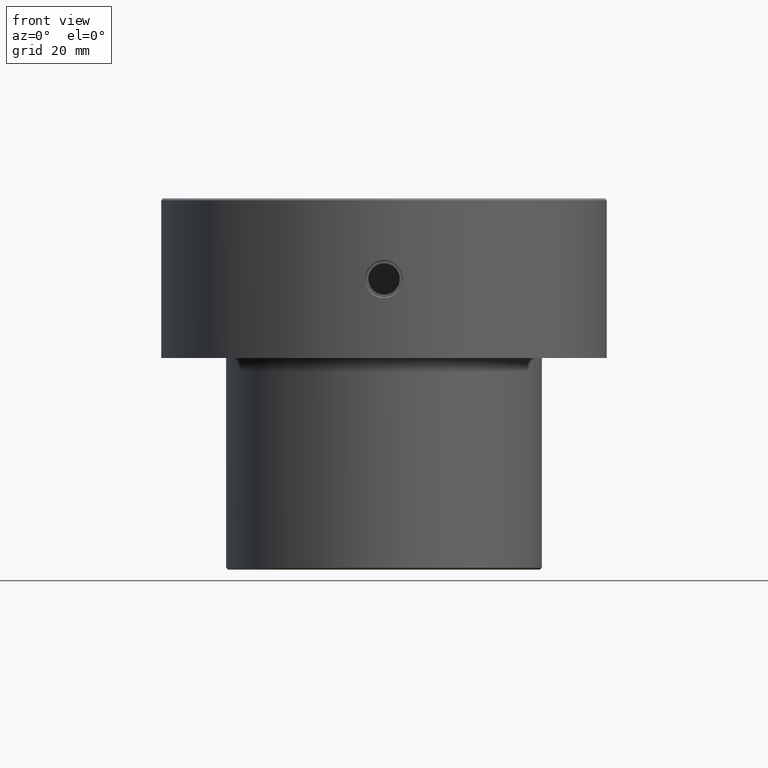
[diagram: clean part render]
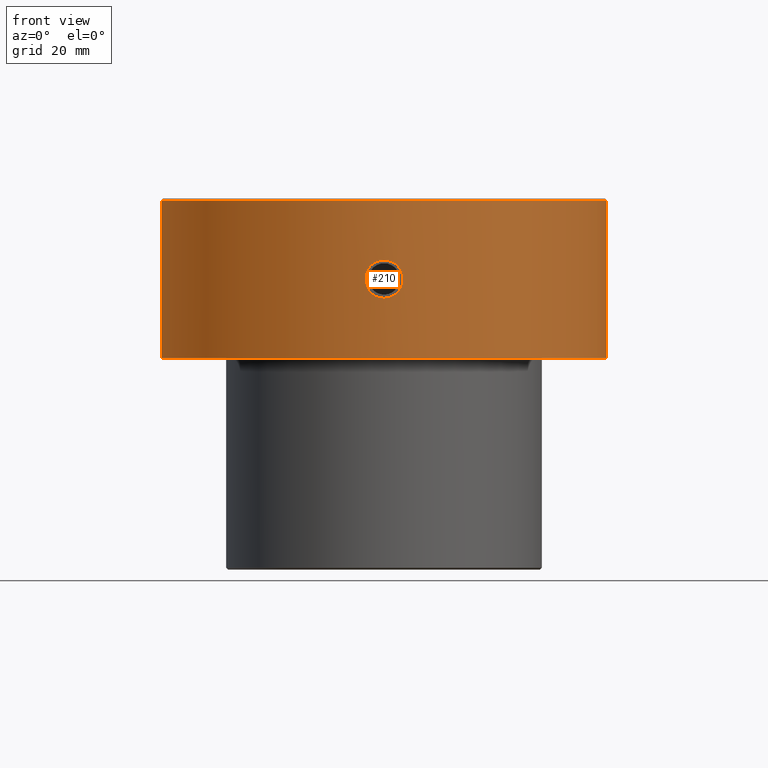
[diagram: same view with one face highlighted and labeled with its STEP entity id]
A machine part, front view. The second image highlights one B-rep face of the part: STEP entity #210.
In plain terms, the highlighted cylindrical surface (partial cylindrical patch) has radius 60 mm, axis along (-0, -0, 1).
Its self-contained STEP definition (entity closure, byte-faithful):
#15 = DIRECTION ( 'NONE',  ( 1.000000000000000000, 0.000000000000000000, 0.000000000000000000 ) ) ;
#19 = CARTESIAN_POINT ( 'NONE',  ( 0.000000000000000000, 0.000000000000000000, -43.00000000000000000 ) ) ;
#27 = CARTESIAN_POINT ( 'NONE',  ( 5.136837413041311251, -59.77970308888831852, -22.08816684699451116 ) ) ;
#32 = CARTESIAN_POINT ( 'NONE',  ( 1.331677132868700042, -59.98543682719939341, -16.77960578962645855 ) ) ;
#40 = CARTESIAN_POINT ( 'NONE',  ( 3.395129289966630992, -59.90433662620570487, -25.62434621544872471 ) ) ;
#80 = CARTESIAN_POINT ( 'NONE',  ( -3.392890526894669634, -59.90447156056805511, -25.62656009414359559 ) ) ;
#86 = CARTESIAN_POINT ( 'NONE',  ( -4.971619445419676708, -59.79370664058078688, -20.41326887254816924 ) ) ;
#114 = CARTESIAN_POINT ( 'NONE',  ( -60.00000000000000000, 7.347880794884118356E-15, -43.00000000000000000 ) ) ;
#118 = CARTESIAN_POINT ( 'NONE',  ( 3.868814782328906965, -59.87560883568547609, -18.34992625906702557 ) ) ;
#126 = FACE_BOUND ( 'NONE', #877, .T. ) ;
#127 = VERTEX_POINT ( 'NONE', #921 ) ;
#129 = ORIENTED_EDGE ( 'NONE', *, *, #819, .T. ) ;
#130 = EDGE_CURVE ( 'NONE', #935, #553, #663, .T. ) ;
#134 = CARTESIAN_POINT ( 'NONE',  ( 4.458730702085411224, -59.83439413144561314, -19.17392351310978782 ) ) ;
#173 = CARTESIAN_POINT ( 'NONE',  ( -1.334972523834260905, -59.98605396347375063, -26.72804907324348633 ) ) ;
#177 = EDGE_CURVE ( 'NONE', #553, #935, #277, .T. ) ;
#188 = CARTESIAN_POINT ( 'NONE',  ( 0.3353192516437006887, -60.00000000000000000, -26.89337299999998265 ) ) ;
#196 = CARTESIAN_POINT ( 'NONE',  ( 0.6692586062491494570, -59.99718901059083720, -26.86081802806996777 ) ) ;
#198 = EDGE_CURVE ( 'NONE', #1077, #127, #1076, .T. ) ;
#205 = CARTESIAN_POINT ( 'NONE',  ( -4.617430343385497515, -59.82220291653938915, -19.47140312544978968 ) ) ;
#210 = ADVANCED_FACE ( 'NONE', ( #701, #126 ), #327, .T. ) ;
#211 = CARTESIAN_POINT ( 'NONE',  ( 4.616423482476442963, -59.82228182878878897, -24.03082886295979392 ) ) ;
#231 = CARTESIAN_POINT ( 'NONE',  ( 4.616407551139440457, -59.82228229204994108, -19.46929791481670691 ) ) ;
#237 = CARTESIAN_POINT ( 'NONE',  ( 4.458574052464452819, -59.83440426827348091, -24.32624052953638127 ) ) ;
#250 = ORIENTED_EDGE ( 'NONE', *, *, #177, .F. ) ;
#260 = CARTESIAN_POINT ( 'NONE',  ( -0.6762753146267388438, -59.99709174962247715, -16.64033222007250501 ) ) ;
#261 = CARTESIAN_POINT ( 'NONE',  ( -60.00000000000000000, 7.347880794884118356E-15, -0.4999999999999796274 ) ) ;
#263 = CIRCLE ( 'NONE', #1115, 60.00000000000000000 ) ;
#277 = B_SPLINE_CURVE_WITH_KNOTS ( 'NONE', 3,
 ( #1052, #188, #196, #575, #1159, #295, #774, #299, #681, #1187, #40, #1071, #1074, #237, #211, #415, #426, #1172, #697, #614, #27, #784, #599, #421, #711, #231, #134, #594, #118, #507, #985, #993, #880, #800, #309, #32, #789, #1001, #408, #526 ),
 .UNSPECIFIED., .F., .F.,
 ( 4, 2, 2, 2, 2, 2, 2, 2, 2, 2, 2, 2, 2, 2, 2, 2, 2, 2, 2, 4 ),
 ( 0.004095405123159071362, 0.005100500369167903711, 0.006105595615176736927, 0.006608143238181152235, 0.007110690861185567542, 0.008115786107194404228, 0.009120881353203240047, 0.01012597659921207760, 0.01062852422221649551, 0.01113107184522091342, 0.01213616709122974924, 0.01314126233723858506, 0.01414635758324742087, 0.01515145282925625669, 0.01615654807526509251, 0.01716164332127392833, 0.01816673856728276415, 0.01866928619028718206, 0.01917183381329159997, 0.02017692905930043579 ),
 .UNSPECIFIED. ) ;
#280 = CARTESIAN_POINT ( 'NONE',  ( 6.298815348907991794E-16, -60.00000000000000000, -16.60662699999998893 ) ) ;
#295 = CARTESIAN_POINT ( 'NONE',  ( 2.121181652099979331, -59.96269291385860356, -26.43736937772831652 ) ) ;
#299 = CARTESIAN_POINT ( 'NONE',  ( 2.569956903251245262, -59.94512013784831339, -26.20657932728730799 ) ) ;
#304 = CARTESIAN_POINT ( 'NONE',  ( -4.875208218984297126, -59.80174531478552780, -23.40457298796985341 ) ) ;
#309 = CARTESIAN_POINT ( 'NONE',  ( 1.654038690124470579, -59.97741367671423518, -16.87764248545315127 ) ) ;
#315 = DIRECTION ( 'NONE',  ( -0.000000000000000000, -0.000000000000000000, 1.000000000000000000 ) ) ;
#324 = DIRECTION ( 'NONE',  ( 0.000000000000000000, 0.000000000000000000, -1.000000000000000000 ) ) ;
#327 = CYLINDRICAL_SURFACE ( 'NONE', #793, 60.00000000000000000 ) ;
#352 = ORIENTED_EDGE ( 'NONE', *, *, #130, .F. ) ;
#383 = CARTESIAN_POINT ( 'NONE',  ( -2.122225307868850663, -59.96265876630112501, -17.06306252860049355 ) ) ;
#404 = CARTESIAN_POINT ( 'NONE',  ( -5.136891892529879655, -59.77969840755128672, -22.08337126903461467 ) ) ;
#408 = CARTESIAN_POINT ( 'NONE',  ( 0.3357746474088908473, -60.00000000000000711, -16.60662699999999248 ) ) ;
#415 = CARTESIAN_POINT ( 'NONE',  ( 4.810057586331644153, -59.80691881596411719, -23.56292269278795715 ) ) ;
#421 = CARTESIAN_POINT ( 'NONE',  ( 4.972930236384428326, -59.79359712298764151, -20.41841324377885414 ) ) ;
#426 = CARTESIAN_POINT ( 'NONE',  ( 4.867400257086890392, -59.80226426731227463, -23.40234003167120846 ) ) ;
#433 = DIRECTION ( 'NONE',  ( -0.000000000000000000, -0.000000000000000000, 1.000000000000000000 ) ) ;
#443 = DIRECTION ( 'NONE',  ( -0.000000000000000000, -0.000000000000000000, 1.000000000000000000 ) ) ;
#459 = LINE ( 'NONE', #625, #951 ) ;
#471 = CARTESIAN_POINT ( 'NONE',  ( -4.619902854489991384, -59.82201012577228738, -24.02332339787123772 ) ) ;
#482 = CARTESIAN_POINT ( 'NONE',  ( -0.6753022773418994040, -59.99710650175052251, -26.85984295772100694 ) ) ;
#497 = CARTESIAN_POINT ( 'NONE',  ( -1.655170096564954285, -59.97797077412162992, -26.63067294738002388 ) ) ;
#506 = CARTESIAN_POINT ( 'NONE',  ( 6.845324727837225521E-22, -60.00000000000000000, -26.89337299999998621 ) ) ;
#507 = CARTESIAN_POINT ( 'NONE',  ( 3.395295615059284788, -59.90432562804078742, -17.87585028340023285 ) ) ;
#526 = CARTESIAN_POINT ( 'NONE',  ( 6.298815348907991794E-16, -60.00000000000000000, -16.60662699999998893 ) ) ;
#546 = CARTESIAN_POINT ( 'NONE',  ( -60.00000000000000000, 7.347880794884118356E-15, 0.000000000000000000 ) ) ;
#553 = VERTEX_POINT ( 'NONE', #506 ) ;
#575 = CARTESIAN_POINT ( 'NONE',  ( 1.334286197922786910, -59.98608402451881716, -26.72841623235544262 ) ) ;
#578 = CARTESIAN_POINT ( 'NONE',  ( -1.334564870160244832, -59.98605924146980328, -16.77188872207099024 ) ) ;
#585 = CARTESIAN_POINT ( 'NONE',  ( -2.276338598975934158, -59.95760876496630232, -26.37304756077071843 ) ) ;
#589 = CARTESIAN_POINT ( 'NONE',  ( -2.577444060477730670, -59.94526141876158931, -26.21165135175434813 ) ) ;
#594 = CARTESIAN_POINT ( 'NONE',  ( 4.085511690621305370, -59.86103569749430164, -18.61419993208327028 ) ) ;
#599 = CARTESIAN_POINT ( 'NONE',  ( 5.103494840026651325, -59.78259472839837230, -21.07611996814103961 ) ) ;
#604 = EDGE_CURVE ( 'NONE', #903, #716, #263, .T. ) ;
#614 = CARTESIAN_POINT ( 'NONE',  ( 5.103448087188714233, -59.78259865512684712, -22.42409519201475376 ) ) ;
#625 = CARTESIAN_POINT ( 'NONE',  ( 60.00000000000000000, 0.000000000000000000, 0.000000000000000000 ) ) ;
#663 = B_SPLINE_CURVE_WITH_KNOTS ( 'NONE', 3,
 ( #1134, #1123, #260, #578, #957, #383, #1233, #748, #1138, #949, #1040, #753, #1067, #1169, #205, #954, #86, #962, #966, #404, #1166, #1240, #304, #471, #846, #1059, #1144, #80, #769, #589, #585, #497, #173, #482, #851, #857 ),
 .UNSPECIFIED., .F., .F.,
 ( 4, 2, 2, 2, 2, 2, 2, 2, 2, 2, 2, 2, 2, 2, 2, 2, 2, 4 ),
 ( 0.02017692905930043926, 0.02118133941276474988, 0.02218574976622905703, 0.02268795494296121235, 0.02319016011969336766, 0.02419457047315767134, 0.02519898082662197850, 0.02620339118008628565, 0.02720780153355059280, 0.02821221188701489996, 0.02921662224047920364, 0.03022103259394351080, 0.03122544294740781795, 0.03222985330087212164, 0.03323426365433643226, 0.03423867400780073594, 0.03524308436126503963, 0.03624749471472935025 ),
 .UNSPECIFIED. ) ;
#681 = CARTESIAN_POINT ( 'NONE',  ( 2.716110241862681907, -59.93865559234498619, -26.11882128585108731 ) ) ;
#697 = CARTESIAN_POINT ( 'NONE',  ( 5.005612553672486698, -59.79084306185327335, -22.91696287705984858 ) ) ;
#701 = FACE_OUTER_BOUND ( 'NONE', #855, .T. ) ;
#711 = CARTESIAN_POINT ( 'NONE',  ( 4.873879870680867477, -59.80185592700366470, -20.09113554818728886 ) ) ;
#716 = VERTEX_POINT ( 'NONE', #261 ) ;
#748 = CARTESIAN_POINT ( 'NONE',  ( -2.573008848707849072, -59.94498884157339091, -17.29519065445447268 ) ) ;
#753 = CARTESIAN_POINT ( 'NONE',  ( -3.872599381372860972, -59.87537384411606922, -18.35389542485611614 ) ) ;
#769 = CARTESIAN_POINT ( 'NONE',  ( -3.133892446774711349, -59.91874750510567083, -25.83902259426039905 ) ) ;
#774 = CARTESIAN_POINT ( 'NONE',  ( 2.272831870379317110, -59.95712086245156769, -26.36559402816300945 ) ) ;
#784 = CARTESIAN_POINT ( 'NONE',  ( 5.136716764881199992, -59.77971345599654995, -21.41000074885476678 ) ) ;
#788 = CARTESIAN_POINT ( 'NONE',  ( 0.000000000000000000, 0.000000000000000000, -0.4999999999999796274 ) ) ;
#789 = CARTESIAN_POINT ( 'NONE',  ( 1.166279132686139031, -59.98889264149693901, -16.73809590519934432 ) ) ;
#793 = AXIS2_PLACEMENT_3D ( 'NONE', #1179, #433, #15 ) ;
#800 = CARTESIAN_POINT ( 'NONE',  ( 1.811921197494527735, -59.97283454296945138, -16.93430745143562532 ) ) ;
#806 = DIRECTION ( 'NONE',  ( 1.000000000000000000, 0.000000000000000000, 0.000000000000000000 ) ) ;
#819 = EDGE_CURVE ( 'NONE', #127, #903, #459, .T. ) ;
#846 = CARTESIAN_POINT ( 'NONE',  ( -4.460797723607837106, -59.83424284692309669, -24.32272315430116194 ) ) ;
#851 = CARTESIAN_POINT ( 'NONE',  ( -0.3350907582184301514, -60.00000000000000000, -26.89337299999998621 ) ) ;
#855 = EDGE_LOOP ( 'NONE', ( #1092, #1156, #129, #1089 ) ) ;
#857 = CARTESIAN_POINT ( 'NONE',  ( 6.845324727837225521E-22, -60.00000000000000000, -26.89337299999998621 ) ) ;
#877 = EDGE_LOOP ( 'NONE', ( #250, #352 ) ) ;
#880 = CARTESIAN_POINT ( 'NONE',  ( 2.275863457393139555, -59.95762013039359317, -17.12681771910652273 ) ) ;
#882 = VECTOR ( 'NONE', #443, 1000.000000000000000 ) ;
#903 = VERTEX_POINT ( 'NONE', #1135 ) ;
#921 = CARTESIAN_POINT ( 'NONE',  ( 60.00000000000000000, 0.000000000000000000, -43.00000000000000000 ) ) ;
#935 = VERTEX_POINT ( 'NONE', #280 ) ;
#936 = AXIS2_PLACEMENT_3D ( 'NONE', #19, #315, #806 ) ;
#949 = CARTESIAN_POINT ( 'NONE',  ( -3.133719085722622477, -59.91875566933840247, -17.66086326497475412 ) ) ;
#951 = VECTOR ( 'NONE', #1223, 1000.000000000000000 ) ;
#954 = CARTESIAN_POINT ( 'NONE',  ( -4.874496461323841956, -59.80180523205108045, -20.09299204850910670 ) ) ;
#957 = CARTESIAN_POINT ( 'NONE',  ( -1.654951896610639350, -59.97798163113541392, -16.86918169930361344 ) ) ;
#962 = CARTESIAN_POINT ( 'NONE',  ( -5.103119134412108515, -59.78262731621875758, -21.07278740049722643 ) ) ;
#966 = CARTESIAN_POINT ( 'NONE',  ( -5.136661841729290856, -59.77971817545689959, -21.41309359910269805 ) ) ;
#971 = DIRECTION ( 'NONE',  ( 1.000000000000000000, 0.000000000000000000, 0.000000000000000000 ) ) ;
#985 = CARTESIAN_POINT ( 'NONE',  ( 3.136572184807668862, -59.91862245681559784, -17.66271839562426749 ) ) ;
#993 = CARTESIAN_POINT ( 'NONE',  ( 2.573642707756239822, -59.94543990501469466, -17.28585666957580713 ) ) ;
#999 = LINE ( 'NONE', #546, #882 ) ;
#1001 = CARTESIAN_POINT ( 'NONE',  ( 0.6693308349767327359, -59.99718148135699636, -16.63927469450458574 ) ) ;
#1040 = CARTESIAN_POINT ( 'NONE',  ( -3.394233923709514489, -59.90439545653060804, -17.87460824929796388 ) ) ;
#1052 = CARTESIAN_POINT ( 'NONE',  ( 6.845324727837225521E-22, -60.00000000000000000, -26.89337299999998621 ) ) ;
#1059 = CARTESIAN_POINT ( 'NONE',  ( -4.085808840166858857, -59.86101819646174960, -24.88560621665943628 ) ) ;
#1067 = CARTESIAN_POINT ( 'NONE',  ( -4.084671716546862896, -59.86109078964461361, -18.61326983062474483 ) ) ;
#1071 = CARTESIAN_POINT ( 'NONE',  ( 3.869439913249562046, -59.87557001214361208, -25.14941786773755794 ) ) ;
#1074 = CARTESIAN_POINT ( 'NONE',  ( 4.086336592822038760, -59.86097785678625627, -24.88463370715550127 ) ) ;
#1076 = CIRCLE ( 'NONE', #936, 60.00000000000000000 ) ;
#1077 = VERTEX_POINT ( 'NONE', #114 ) ;
#1089 = ORIENTED_EDGE ( 'NONE', *, *, #604, .T. ) ;
#1092 = ORIENTED_EDGE ( 'NONE', *, *, #1164, .F. ) ;
#1115 = AXIS2_PLACEMENT_3D ( 'NONE', #788, #324, #971 ) ;
#1123 = CARTESIAN_POINT ( 'NONE',  ( -0.3355458436675904377, -60.00000000000002132, -16.60662699999998537 ) ) ;
#1134 = CARTESIAN_POINT ( 'NONE',  ( 6.298815348907991794E-16, -60.00000000000000000, -16.60662699999998893 ) ) ;
#1135 = CARTESIAN_POINT ( 'NONE',  ( 60.00000000000000000, 0.000000000000000000, -0.4999999999999796274 ) ) ;
#1138 = CARTESIAN_POINT ( 'NONE',  ( -2.716673856973645051, -59.93862738019915071, -17.38158368042123314 ) ) ;
#1144 = CARTESIAN_POINT ( 'NONE',  ( -3.871257206346193414, -59.87546063890205517, -25.14762598344132982 ) ) ;
#1156 = ORIENTED_EDGE ( 'NONE', *, *, #198, .T. ) ;
#1159 = CARTESIAN_POINT ( 'NONE',  ( 1.657127589293506675, -59.97791043779756848, -26.62991781666021751 ) ) ;
#1164 = EDGE_CURVE ( 'NONE', #1077, #716, #999, .T. ) ;
#1166 = CARTESIAN_POINT ( 'NONE',  ( -5.104609391736500967, -59.78250002147751019, -22.41703140216938195 ) ) ;
#1169 = CARTESIAN_POINT ( 'NONE',  ( -4.456465187890391810, -59.83456067848378268, -19.17019899823439033 ) ) ;
#1172 = CARTESIAN_POINT ( 'NONE',  ( 4.964984462033568136, -59.79424157936875162, -23.07976466236027946 ) ) ;
#1179 = CARTESIAN_POINT ( 'NONE',  ( 0.000000000000000000, 0.000000000000000000, 0.000000000000000000 ) ) ;
#1187 = CARTESIAN_POINT ( 'NONE',  ( 3.136586164436980795, -59.91861633489099148, -25.83716151980333464 ) ) ;
#1223 = DIRECTION ( 'NONE',  ( -0.000000000000000000, -0.000000000000000000, 1.000000000000000000 ) ) ;
#1233 = CARTESIAN_POINT ( 'NONE',  ( -2.276187516567647950, -59.95699318796190624, -17.13606810828719063 ) ) ;
#1240 = CARTESIAN_POINT ( 'NONE',  ( -4.973228892054395445, -59.79357273359232039, -23.08130330748432257 ) ) ;